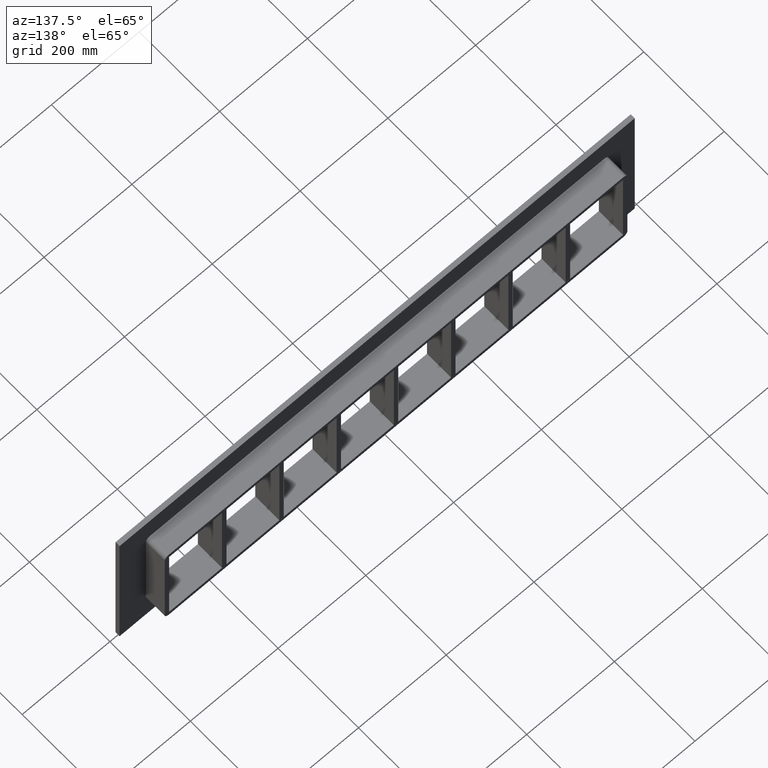
[diagram: clean part render]
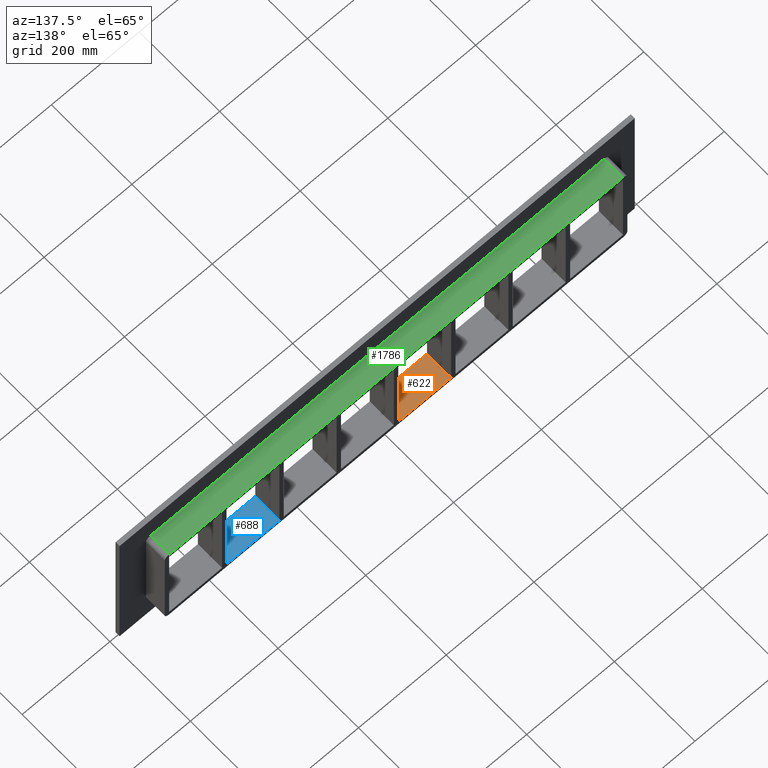
[diagram: same view with three faces highlighted in distinct colors, each labeled with its STEP entity id]
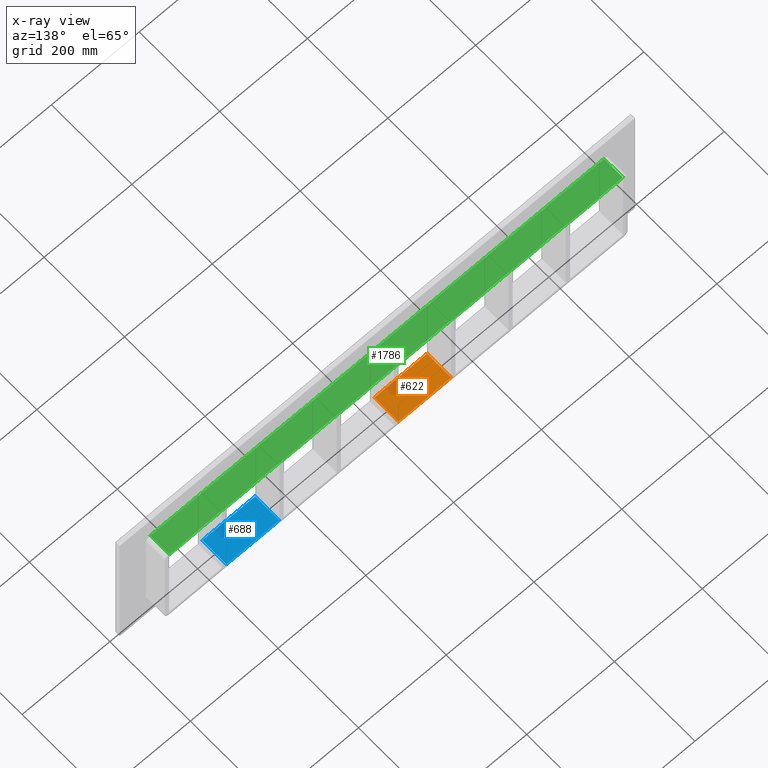
[diagram: x-ray of the same camera — body ghosted, the three highlighted faces saturated]
A machine part, auxiliary view with three faces highlighted in distinct colors.
The next image is the same camera in x-ray (body ghosted, the three faces saturated) — at least one of them is partly hidden behind the body in this view.
Their STEP definitions:

[orange] entity #622 — the highlighted planar face has unit normal (0, 0, -1).
#313=CARTESIAN_POINT('',(-5.000000000001208,-3.0,-108.99999999999999));
#314=VERTEX_POINT('',#313);
#331=CARTESIAN_POINT('',(-5.000000000001208,57.0,-108.99999999999999));
#332=VERTEX_POINT('',#331);
#339=CARTESIAN_POINT('',(-5.000000000001208,-3.0,-108.99999999999999));
#340=DIRECTION('',(0.0,1.0,0.0));
#341=VECTOR('',#340,60.000000000000007);
#342=LINE('',#339,#341);
#343=EDGE_CURVE('',#314,#332,#342,.T.);
#435=CARTESIAN_POINT('',(-125.49999999999635,-3.0,-108.99999999998407));
#436=VERTEX_POINT('',#435);
#443=CARTESIAN_POINT('',(-125.49999999999635,57.0,-108.99999999998407));
#444=VERTEX_POINT('',#443);
#445=CARTESIAN_POINT('',(-125.49999999999635,57.000000000000007,-108.99999999999999));
#446=DIRECTION('',(0.0,-1.0,0.0));
#447=VECTOR('',#446,60.000000000000007);
#448=LINE('',#445,#447);
#449=EDGE_CURVE('',#444,#436,#448,.T.);
#601=CARTESIAN_POINT('',(517.0,0.0,-108.99999999999999));
#602=DIRECTION('',(0.0,0.0,-1.0));
#603=DIRECTION('',(-1.0,0.0,0.0));
#604=AXIS2_PLACEMENT_3D('',#601,#602,#603);
#605=PLANE('',#604);
#606=ORIENTED_EDGE('',*,*,#343,.T.);
#607=CARTESIAN_POINT('',(-125.49999999999636,57.0,-108.99999999999999));
#608=DIRECTION('',(1.0,0.0,0.0));
#609=VECTOR('',#608,120.49999999999517);
#610=LINE('',#607,#609);
#611=EDGE_CURVE('',#444,#332,#610,.T.);
#612=ORIENTED_EDGE('',*,*,#611,.F.);
#613=ORIENTED_EDGE('',*,*,#449,.T.);
#614=CARTESIAN_POINT('',(-5.000000000001194,-3.0,-108.99999999999999));
#615=DIRECTION('',(-1.0,0.0,0.0));
#616=VECTOR('',#615,120.49999999999517);
#617=LINE('',#614,#616);
#618=EDGE_CURVE('',#314,#436,#617,.T.);
#619=ORIENTED_EDGE('',*,*,#618,.F.);
#620=EDGE_LOOP('',(#606,#612,#613,#619));
#621=FACE_OUTER_BOUND('',#620,.T.);
#622=ADVANCED_FACE('',(#621),#605,.F.);

[blue] entity #688 — the highlighted planar face has unit normal (0, 0, -1).
#73=CARTESIAN_POINT('',(386.49999999999892,-3.0,-108.99999999999999));
#74=VERTEX_POINT('',#73);
#91=CARTESIAN_POINT('',(386.49999999999892,57.0,-108.99999999999999));
#92=VERTEX_POINT('',#91);
#99=CARTESIAN_POINT('',(386.49999999999892,-3.0,-108.99999999999999));
#100=DIRECTION('',(0.0,1.0,0.0));
#101=VECTOR('',#100,60.000000000000007);
#102=LINE('',#99,#101);
#103=EDGE_CURVE('',#74,#92,#102,.T.);
#195=CARTESIAN_POINT('',(266.00000000000369,-3.0,-108.99999999998407));
#196=VERTEX_POINT('',#195);
#203=CARTESIAN_POINT('',(266.00000000000369,57.0,-108.99999999998407));
#204=VERTEX_POINT('',#203);
#205=CARTESIAN_POINT('',(266.00000000000369,57.000000000000007,-108.99999999999999));
#206=DIRECTION('',(0.0,-1.0,0.0));
#207=VECTOR('',#206,60.000000000000007);
#208=LINE('',#205,#207);
#209=EDGE_CURVE('',#204,#196,#208,.T.);
#667=CARTESIAN_POINT('',(517.0,0.0,-108.99999999999999));
#668=DIRECTION('',(0.0,0.0,-1.0));
#669=DIRECTION('',(-1.0,0.0,0.0));
#670=AXIS2_PLACEMENT_3D('',#667,#668,#669);
#671=PLANE('',#670);
#672=ORIENTED_EDGE('',*,*,#103,.T.);
#673=CARTESIAN_POINT('',(266.00000000000369,57.0,-108.99999999999999));
#674=DIRECTION('',(1.0,0.0,0.0));
#675=VECTOR('',#674,120.49999999999523);
#676=LINE('',#673,#675);
#677=EDGE_CURVE('',#204,#92,#676,.T.);
#678=ORIENTED_EDGE('',*,*,#677,.F.);
#679=ORIENTED_EDGE('',*,*,#209,.T.);
#680=CARTESIAN_POINT('',(386.49999999999892,-3.0,-108.99999999999999));
#681=DIRECTION('',(-1.0,0.0,0.0));
#682=VECTOR('',#681,120.49999999999523);
#683=LINE('',#680,#682);
#684=EDGE_CURVE('',#74,#196,#683,.T.);
#685=ORIENTED_EDGE('',*,*,#684,.F.);
#686=EDGE_LOOP('',(#672,#678,#679,#685));
#687=FACE_OUTER_BOUND('',#686,.T.);
#688=ADVANCED_FACE('',(#687),#671,.F.);

[green] entity #1786 — the highlighted planar face has unit normal (0, 0, 1).
#1091=CARTESIAN_POINT('',(517.0,10.0,118.99999999999999));
#1092=VERTEX_POINT('',#1091);
#1100=CARTESIAN_POINT('',(-517.0,10.0,118.99999999999999));
#1101=VERTEX_POINT('',#1100);
#1102=CARTESIAN_POINT('',(-517.0,10.0,118.99999999999999));
#1103=DIRECTION('',(1.0,0.0,0.0));
#1104=VECTOR('',#1103,1034.0);
#1105=LINE('',#1102,#1104);
#1106=EDGE_CURVE('',#1101,#1092,#1105,.T.);
#1372=CARTESIAN_POINT('',(517.0,57.0,118.99999999999999));
#1373=VERTEX_POINT('',#1372);
#1381=CARTESIAN_POINT('',(517.0,57.0,118.99999999999999));
#1382=DIRECTION('',(0.0,-1.0,0.0));
#1383=VECTOR('',#1382,47.0);
#1384=LINE('',#1381,#1383);
#1385=EDGE_CURVE('',#1373,#1092,#1384,.T.);
#1751=CARTESIAN_POINT('',(-517.0,57.0,118.99999999999999));
#1752=VERTEX_POINT('',#1751);
#1753=CARTESIAN_POINT('',(-517.0,10.0,118.99999999999999));
#1754=DIRECTION('',(0.0,1.0,0.0));
#1755=VECTOR('',#1754,47.0);
#1756=LINE('',#1753,#1755);
#1757=EDGE_CURVE('',#1101,#1752,#1756,.T.);
#1770=CARTESIAN_POINT('',(-527.0,0.0,118.99999999999999));
#1771=DIRECTION('',(0.0,0.0,1.0));
#1772=DIRECTION('',(1.0,0.0,0.0));
#1773=AXIS2_PLACEMENT_3D('',#1770,#1771,#1772);
#1774=PLANE('',#1773);
#1775=ORIENTED_EDGE('',*,*,#1106,.T.);
#1776=ORIENTED_EDGE('',*,*,#1385,.F.);
#1777=CARTESIAN_POINT('',(-517.0,57.0,118.99999999999999));
#1778=DIRECTION('',(1.0,0.0,0.0));
#1779=VECTOR('',#1778,1034.0);
#1780=LINE('',#1777,#1779);
#1781=EDGE_CURVE('',#1752,#1373,#1780,.T.);
#1782=ORIENTED_EDGE('',*,*,#1781,.F.);
#1783=ORIENTED_EDGE('',*,*,#1757,.F.);
#1784=EDGE_LOOP('',(#1775,#1776,#1782,#1783));
#1785=FACE_OUTER_BOUND('',#1784,.T.);
#1786=ADVANCED_FACE('',(#1785),#1774,.T.);